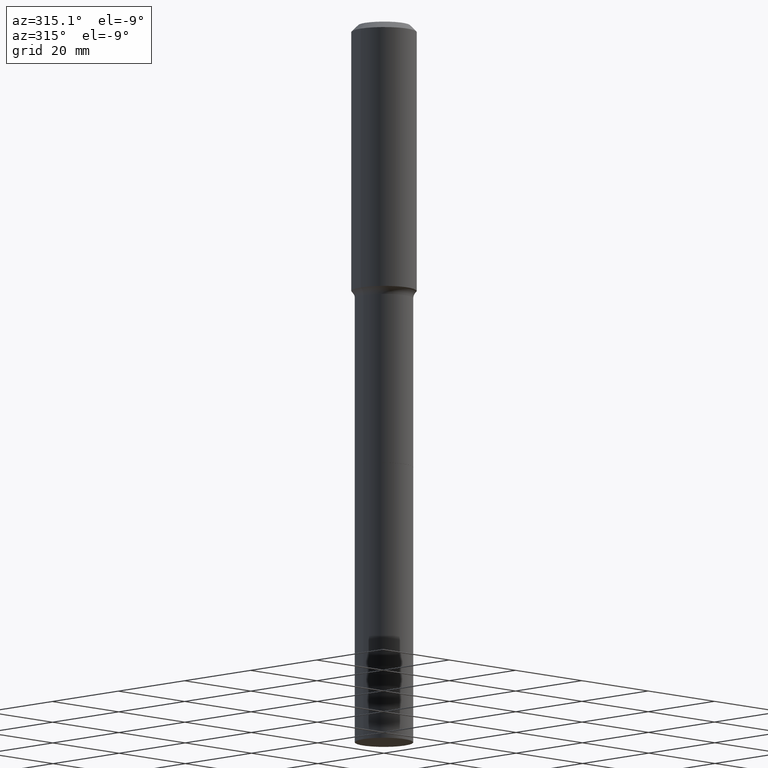
[diagram: clean part render]
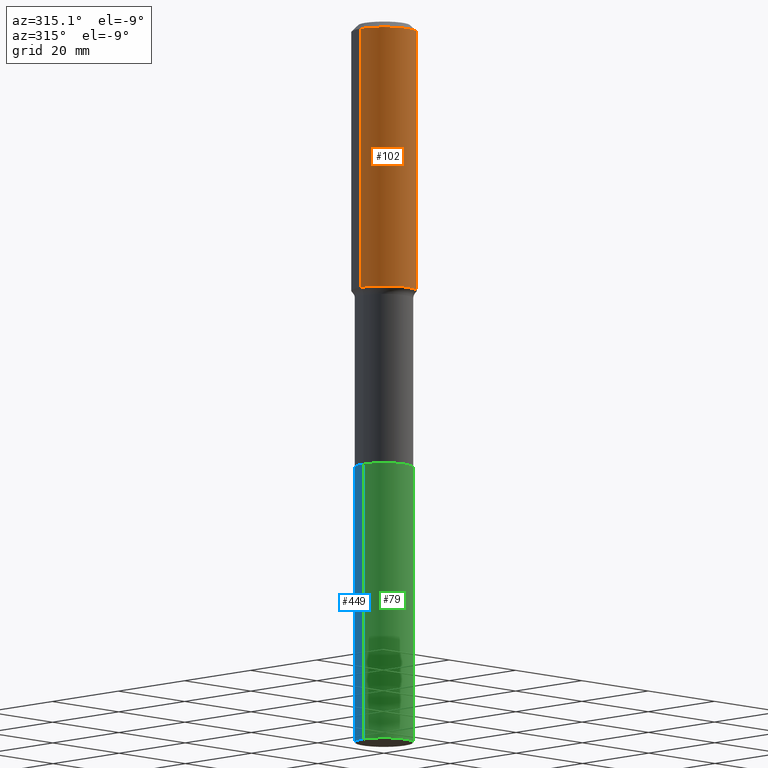
[diagram: same view with three faces highlighted in distinct colors, each labeled with its STEP entity id]
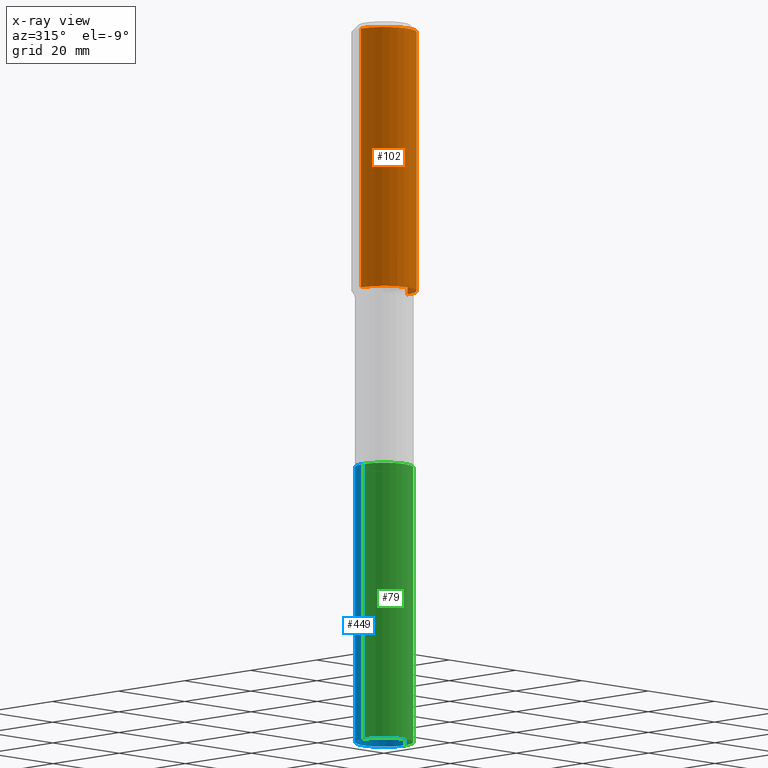
[diagram: x-ray of the same camera — body ghosted, the three highlighted faces saturated]
A machine part, auxiliary view with three faces highlighted in distinct colors.
The next image is the same camera in x-ray (body ghosted, the three faces saturated) — at least one of them is partly hidden behind the body in this view.
Their STEP definitions:

[orange] entity #102 — the highlighted cylindrical surface (edge-blend (fillet) strip) has radius 7.0002 mm, axis along (-0, 0, 1).
#14 = DIRECTION ( 'NONE',  ( 1.000000000000000000, -6.982962677686265922E-15, 4.876176775795935793E-29 ) ) ;
#27 = CIRCLE ( 'NONE', #445, 0.2756000000000000116 ) ;
#32 = DIRECTION ( 'NONE',  ( -2.445468806185136597E-29, 3.491481338843145583E-15, 1.000000000000000000 ) ) ;
#43 = DIRECTION ( 'NONE',  ( -2.445468806185136877E-29, 3.491481338843145188E-15, 1.000000000000000000 ) ) ;
#44 = CIRCLE ( 'NONE', #138, 0.2756000000000002892 ) ;
#68 = EDGE_CURVE ( 'NONE', #215, #512, #484, .T. ) ;
#72 = LINE ( 'NONE', #306, #180 ) ;
#77 = DIRECTION ( 'NONE',  ( 1.000000000000000000, -6.982962677686265922E-15, 0.000000000000000000 ) ) ;
#93 = AXIS2_PLACEMENT_3D ( 'NONE', #338, #457, #14 ) ;
#96 = DIRECTION ( 'NONE',  ( -2.445468806185136597E-29, 3.491481338843145583E-15, 1.000000000000000000 ) ) ;
#102 = ADVANCED_FACE ( 'NONE', ( #144 ), #217, .T. ) ;
#107 = ORIENTED_EDGE ( 'NONE', *, *, #460, .F. ) ;
#119 = CARTESIAN_POINT ( 'NONE',  ( 0.2756000000000002892, -9.812454499037325729E-15, -2.259198666569575131 ) ) ;
#138 = AXIS2_PLACEMENT_3D ( 'NONE', #491, #96, #263 ) ;
#144 = FACE_OUTER_BOUND ( 'NONE', #430, .T. ) ;
#147 = EDGE_CURVE ( 'NONE', #215, #241, #44, .T. ) ;
#180 = VECTOR ( 'NONE', #309, 39.37007874015748143 ) ;
#198 = CARTESIAN_POINT ( 'NONE',  ( -0.2756000000000000116, -2.081944438477174284E-15, -0.05512000000000035621 ) ) ;
#209 = CARTESIAN_POINT ( 'NONE',  ( -0.2756000000000001782, 1.958255779754837378E-15, -1.355658510874252848E-29 ) ) ;
#215 = VERTEX_POINT ( 'NONE', #498 ) ;
#217 = CYLINDRICAL_SURFACE ( 'NONE', #93, 0.2756000000000001782 ) ;
#241 = VERTEX_POINT ( 'NONE', #119 ) ;
#263 = DIRECTION ( 'NONE',  ( 1.000000000000000000, -6.982962677686265922E-15, 0.000000000000000000 ) ) ;
#284 = VECTOR ( 'NONE', #43, 39.37007874015748143 ) ;
#289 = CARTESIAN_POINT ( 'NONE',  ( 0.2756000000000000116, -2.116954965367370658E-15, -0.05512000000000035621 ) ) ;
#306 = CARTESIAN_POINT ( 'NONE',  ( 0.2756000000000001782, -1.924504513970336137E-15, 1.343874319409360828E-29 ) ) ;
#309 = DIRECTION ( 'NONE',  ( -2.445468806185136877E-29, 3.491481338843145188E-15, 1.000000000000000000 ) ) ;
#338 = CARTESIAN_POINT ( 'NONE',  ( 0.000000000000000000, 0.000000000000000000, 0.000000000000000000 ) ) ;
#390 = ORIENTED_EDGE ( 'NONE', *, *, #68, .F. ) ;
#404 = CARTESIAN_POINT ( 'NONE',  ( 1.347942405969256063E-30, -1.924504513970354330E-16, -0.05512000000000035621 ) ) ;
#405 = EDGE_CURVE ( 'NONE', #241, #468, #72, .T. ) ;
#408 = ORIENTED_EDGE ( 'NONE', *, *, #147, .T. ) ;
#430 = EDGE_LOOP ( 'NONE', ( #390, #408, #518, #107 ) ) ;
#445 = AXIS2_PLACEMENT_3D ( 'NONE', #404, #32, #77 ) ;
#457 = DIRECTION ( 'NONE',  ( -2.445468806185136597E-29, 3.491481338843145583E-15, 1.000000000000000000 ) ) ;
#460 = EDGE_CURVE ( 'NONE', #512, #468, #27, .T. ) ;
#468 = VERTEX_POINT ( 'NONE', #289 ) ;
#484 = LINE ( 'NONE', #209, #284 ) ;
#491 = CARTESIAN_POINT ( 'NONE',  ( 5.524799866070951435E-29, -7.887949985066989197E-15, -2.259198666569575131 ) ) ;
#498 = CARTESIAN_POINT ( 'NONE',  ( -0.2756000000000002892, -5.929694205312150241E-15, -2.259198666569575131 ) ) ;
#512 = VERTEX_POINT ( 'NONE', #198 ) ;
#518 = ORIENTED_EDGE ( 'NONE', *, *, #405, .T. ) ;

[blue] entity #449 — the highlighted cylindrical surface (edge-blend (fillet) strip) has radius 6.2497 mm, axis along (-0, 0, 1).
#10 = DIRECTION ( 'NONE',  ( -2.445468806185136877E-29, 3.491481338843145188E-15, 1.000000000000000000 ) ) ;
#26 = CARTESIAN_POINT ( 'NONE',  ( 0.2460499999999999909, -1.484752439343046924E-14, -3.760399999999999743 ) ) ;
#41 = EDGE_CURVE ( 'NONE', #321, #481, #506, .T. ) ;
#42 = FACE_OUTER_BOUND ( 'NONE', #174, .T. ) ;
#73 = ORIENTED_EDGE ( 'NONE', *, *, #219, .F. ) ;
#76 = EDGE_CURVE ( 'NONE', #171, #481, #367, .T. ) ;
#118 = VECTOR ( 'NONE', #290, 39.37007874015748143 ) ;
#123 = CYLINDRICAL_SURFACE ( 'NONE', #162, 0.2460499999999999909 ) ;
#125 = CARTESIAN_POINT ( 'NONE',  ( -0.2460499999999999909, -1.546960067303336290E-14, -3.760399999999999743 ) ) ;
#129 = DIRECTION ( 'NONE',  ( -2.445468806185136597E-29, 3.491481338843145583E-15, 1.000000000000000000 ) ) ;
#135 = CARTESIAN_POINT ( 'NONE',  ( -0.2460499999999999909, -1.138107602524803588E-14, -3.760399999999999743 ) ) ;
#137 = EDGE_CURVE ( 'NONE', #247, #171, #228, .T. ) ;
#148 = LINE ( 'NONE', #227, #423 ) ;
#162 = AXIS2_PLACEMENT_3D ( 'NONE', #407, #360, #395 ) ;
#171 = VERTEX_POINT ( 'NONE', #176 ) ;
#174 = EDGE_LOOP ( 'NONE', ( #432, #317, #192, #73 ) ) ;
#176 = CARTESIAN_POINT ( 'NONE',  ( -0.2460499999999999909, -1.546960067303336290E-14, -6.102400000000000269 ) ) ;
#192 = ORIENTED_EDGE ( 'NONE', *, *, #41, .F. ) ;
#194 = CARTESIAN_POINT ( 'NONE',  ( 0.2460499999999999909, -2.302457368900111697E-14, -6.102400000000000269 ) ) ;
#219 = EDGE_CURVE ( 'NONE', #247, #321, #148, .T. ) ;
#224 = DIRECTION ( 'NONE',  ( -2.445468806185136597E-29, 3.491481338843145583E-15, 1.000000000000000000 ) ) ;
#227 = CARTESIAN_POINT ( 'NONE',  ( 0.2460499999999999909, -1.484752439343046924E-14, -3.760399999999999743 ) ) ;
#228 = CIRCLE ( 'NONE', #359, 0.2460499999999999909 ) ;
#247 = VERTEX_POINT ( 'NONE', #194 ) ;
#267 = CARTESIAN_POINT ( 'NONE',  ( 1.492322884286417914E-28, -2.130641572215641241E-14, -6.102400000000000269 ) ) ;
#286 = DIRECTION ( 'NONE',  ( 1.000000000000000000, -6.982962677686266711E-15, 0.000000000000000000 ) ) ;
#290 = DIRECTION ( 'NONE',  ( -2.445468806185136877E-29, 3.491481338843145188E-15, 1.000000000000000000 ) ) ;
#317 = ORIENTED_EDGE ( 'NONE', *, *, #76, .T. ) ;
#321 = VERTEX_POINT ( 'NONE', #26 ) ;
#359 = AXIS2_PLACEMENT_3D ( 'NONE', #267, #224, #373 ) ;
#360 = DIRECTION ( 'NONE',  ( -2.445468806185136597E-29, 3.491481338843145583E-15, 1.000000000000000000 ) ) ;
#367 = LINE ( 'NONE', #135, #118 ) ;
#373 = DIRECTION ( 'NONE',  ( 1.000000000000000000, -6.982962677686259611E-15, 0.000000000000000000 ) ) ;
#395 = DIRECTION ( 'NONE',  ( 1.000000000000000000, -6.982962677686266711E-15, 0.000000000000000000 ) ) ;
#407 = CARTESIAN_POINT ( 'NONE',  ( 9.195940898778586679E-29, -1.312936642658576311E-14, -3.760399999999999743 ) ) ;
#423 = VECTOR ( 'NONE', #10, 39.37007874015748143 ) ;
#432 = ORIENTED_EDGE ( 'NONE', *, *, #137, .T. ) ;
#444 = AXIS2_PLACEMENT_3D ( 'NONE', #478, #129, #286 ) ;
#449 = ADVANCED_FACE ( 'NONE', ( #42 ), #123, .T. ) ;
#478 = CARTESIAN_POINT ( 'NONE',  ( 9.195940898778586679E-29, -1.312936642658576311E-14, -3.760399999999999743 ) ) ;
#481 = VERTEX_POINT ( 'NONE', #125 ) ;
#506 = CIRCLE ( 'NONE', #444, 0.2460499999999999909 ) ;

[green] entity #79 — the highlighted cylindrical surface (edge-blend (fillet) strip) has radius 6.2497 mm, axis along (-0, 0, 1).
#10 = DIRECTION ( 'NONE',  ( -2.445468806185136877E-29, 3.491481338843145188E-15, 1.000000000000000000 ) ) ;
#26 = CARTESIAN_POINT ( 'NONE',  ( 0.2460499999999999909, -1.484752439343046924E-14, -3.760399999999999743 ) ) ;
#49 = CYLINDRICAL_SURFACE ( 'NONE', #52, 0.2460499999999999909 ) ;
#52 = AXIS2_PLACEMENT_3D ( 'NONE', #376, #56, #55 ) ;
#55 = DIRECTION ( 'NONE',  ( 1.000000000000000000, -6.982962677686266711E-15, 0.000000000000000000 ) ) ;
#56 = DIRECTION ( 'NONE',  ( -2.445468806185136597E-29, 3.491481338843145583E-15, 1.000000000000000000 ) ) ;
#76 = EDGE_CURVE ( 'NONE', #171, #481, #367, .T. ) ;
#79 = ADVANCED_FACE ( 'NONE', ( #419 ), #49, .T. ) ;
#103 = DIRECTION ( 'NONE',  ( -2.445468806185136597E-29, 3.491481338843145583E-15, 1.000000000000000000 ) ) ;
#117 = EDGE_LOOP ( 'NONE', ( #244, #388, #368, #471 ) ) ;
#118 = VECTOR ( 'NONE', #290, 39.37007874015748143 ) ;
#125 = CARTESIAN_POINT ( 'NONE',  ( -0.2460499999999999909, -1.546960067303336290E-14, -3.760399999999999743 ) ) ;
#135 = CARTESIAN_POINT ( 'NONE',  ( -0.2460499999999999909, -1.138107602524803588E-14, -3.760399999999999743 ) ) ;
#146 = CIRCLE ( 'NONE', #446, 0.2460499999999999909 ) ;
#148 = LINE ( 'NONE', #227, #423 ) ;
#150 = EDGE_CURVE ( 'NONE', #481, #321, #371, .T. ) ;
#155 = DIRECTION ( 'NONE',  ( -2.445468806185136597E-29, 3.491481338843145583E-15, 1.000000000000000000 ) ) ;
#157 = CARTESIAN_POINT ( 'NONE',  ( 1.492322884286417914E-28, -2.130641572215641241E-14, -6.102400000000000269 ) ) ;
#171 = VERTEX_POINT ( 'NONE', #176 ) ;
#176 = CARTESIAN_POINT ( 'NONE',  ( -0.2460499999999999909, -1.546960067303336290E-14, -6.102400000000000269 ) ) ;
#194 = CARTESIAN_POINT ( 'NONE',  ( 0.2460499999999999909, -2.302457368900111697E-14, -6.102400000000000269 ) ) ;
#219 = EDGE_CURVE ( 'NONE', #247, #321, #148, .T. ) ;
#227 = CARTESIAN_POINT ( 'NONE',  ( 0.2460499999999999909, -1.484752439343046924E-14, -3.760399999999999743 ) ) ;
#231 = DIRECTION ( 'NONE',  ( 1.000000000000000000, -6.982962677686259611E-15, 0.000000000000000000 ) ) ;
#244 = ORIENTED_EDGE ( 'NONE', *, *, #76, .F. ) ;
#247 = VERTEX_POINT ( 'NONE', #194 ) ;
#290 = DIRECTION ( 'NONE',  ( -2.445468806185136877E-29, 3.491481338843145188E-15, 1.000000000000000000 ) ) ;
#321 = VERTEX_POINT ( 'NONE', #26 ) ;
#341 = AXIS2_PLACEMENT_3D ( 'NONE', #380, #103, #493 ) ;
#357 = EDGE_CURVE ( 'NONE', #171, #247, #146, .T. ) ;
#367 = LINE ( 'NONE', #135, #118 ) ;
#368 = ORIENTED_EDGE ( 'NONE', *, *, #219, .T. ) ;
#371 = CIRCLE ( 'NONE', #341, 0.2460499999999999909 ) ;
#376 = CARTESIAN_POINT ( 'NONE',  ( 9.195940898778586679E-29, -1.312936642658576311E-14, -3.760399999999999743 ) ) ;
#380 = CARTESIAN_POINT ( 'NONE',  ( 9.195940898778586679E-29, -1.312936642658576311E-14, -3.760399999999999743 ) ) ;
#388 = ORIENTED_EDGE ( 'NONE', *, *, #357, .T. ) ;
#419 = FACE_OUTER_BOUND ( 'NONE', #117, .T. ) ;
#423 = VECTOR ( 'NONE', #10, 39.37007874015748143 ) ;
#446 = AXIS2_PLACEMENT_3D ( 'NONE', #157, #155, #231 ) ;
#471 = ORIENTED_EDGE ( 'NONE', *, *, #150, .F. ) ;
#481 = VERTEX_POINT ( 'NONE', #125 ) ;
#493 = DIRECTION ( 'NONE',  ( 1.000000000000000000, -6.982962677686266711E-15, 0.000000000000000000 ) ) ;